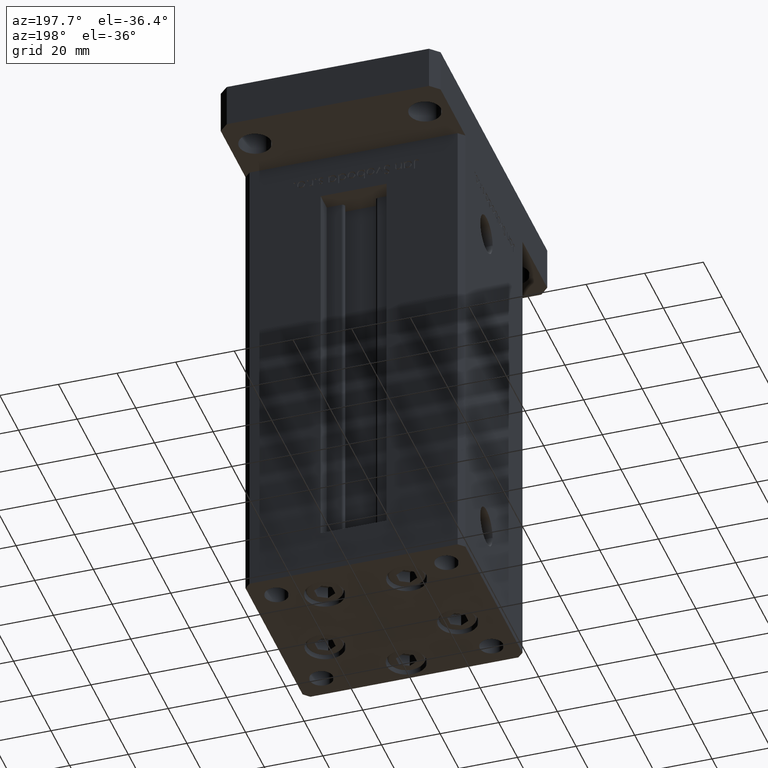
[diagram: clean part render]
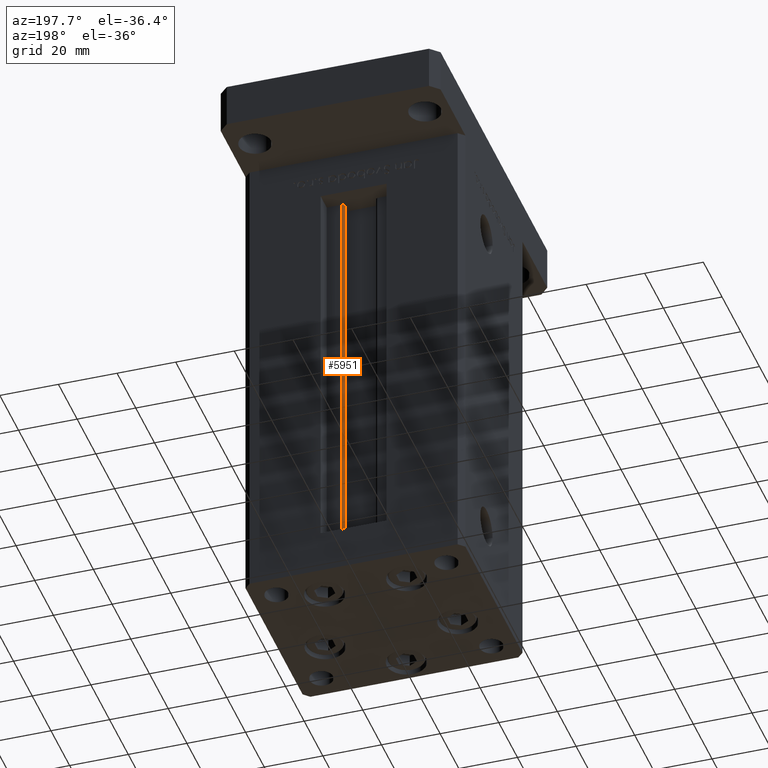
[diagram: same view with one face highlighted and labeled with its STEP entity id]
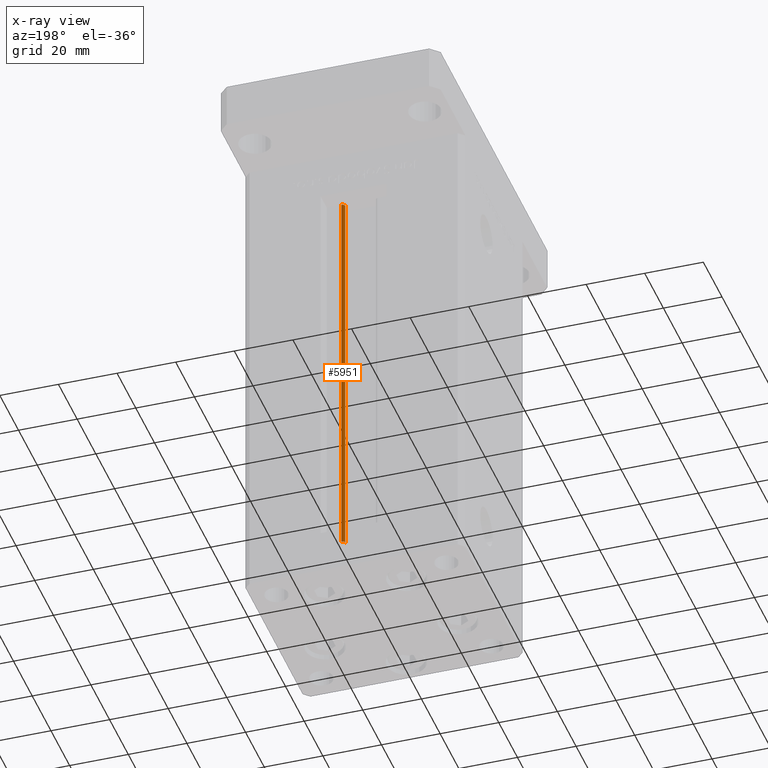
[diagram: x-ray of the same camera — body ghosted, the highlighted face saturated]
A machine part, auxiliary view. The second image highlights one B-rep face of the part: STEP entity #5951.
The next image is the same camera in x-ray: the body ghosted, the highlighted face saturated — about 0% of this face is hidden behind the body in this view.
In plain terms, the highlighted cylindrical surface (edge-blend (fillet) strip) has radius 0.9333 mm, axis along (0, 0, 1).
Its self-contained STEP definition (entity closure, byte-faithful):
#1977 = CARTESIAN_POINT ( 'NONE',  ( 6.183333333334001480, 25.06666666666599141, 0.000000000000000000 ) ) ;
#2240 = CYLINDRICAL_SURFACE ( 'NONE', #17196, 0.9333333333340008142 ) ;
#2278 = CARTESIAN_POINT ( 'NONE',  ( 5.375042956467948052, 24.59999999999899245, 136.0000000000000000 ) ) ;
#2524 = AXIS2_PLACEMENT_3D ( 'NONE', #9638, #13414, #42427 ) ;
#3739 = DIRECTION ( 'NONE',  ( 1.000000000000000000, 0.000000000000000000, 0.000000000000000000 ) ) ;
#5951 = ADVANCED_FACE ( 'NONE', ( #39107 ), #2240, .T. ) ;
#6570 = DIRECTION ( 'NONE',  ( 1.000000000000000000, 0.000000000000000000, 0.000000000000000000 ) ) ;
#7948 = EDGE_CURVE ( 'NONE', #32286, #38948, #45721, .T. ) ;
#9638 = CARTESIAN_POINT ( 'NONE',  ( 6.183333333334001480, 25.06666666666599141, 0.000000000000000000 ) ) ;
#10115 = CARTESIAN_POINT ( 'NONE',  ( 6.183333333334001480, 25.99999999999999289, 0.000000000000000000 ) ) ;
#10189 = LINE ( 'NONE', #35648, #31067 ) ;
#11088 = EDGE_CURVE ( 'NONE', #38948, #14856, #10189, .T. ) ;
#11213 = ORIENTED_EDGE ( 'NONE', *, *, #50411, .T. ) ;
#12940 = CARTESIAN_POINT ( 'NONE',  ( 6.183333333334001480, 25.06666666666599141, 136.0000000000000000 ) ) ;
#13414 = DIRECTION ( 'NONE',  ( -0.000000000000000000, -0.000000000000000000, -1.000000000000000000 ) ) ;
#14856 = VERTEX_POINT ( 'NONE', #39623 ) ;
#17196 = AXIS2_PLACEMENT_3D ( 'NONE', #1977, #18505, #6570 ) ;
#17968 = ORIENTED_EDGE ( 'NONE', *, *, #11088, .F. ) ;
#18505 = DIRECTION ( 'NONE',  ( -0.000000000000000000, -0.000000000000000000, 1.000000000000000000 ) ) ;
#19245 = VERTEX_POINT ( 'NONE', #2278 ) ;
#19266 = AXIS2_PLACEMENT_3D ( 'NONE', #12940, #32485, #3739 ) ;
#20956 = VECTOR ( 'NONE', #50054, 1000.000000000000000 ) ;
#23039 = EDGE_LOOP ( 'NONE', ( #17968, #40872, #11213, #43779 ) ) ;
#23815 = CARTESIAN_POINT ( 'NONE',  ( 5.375042956467947164, 24.59999999999899245, 0.000000000000000000 ) ) ;
#26208 = EDGE_CURVE ( 'NONE', #19245, #14856, #46993, .T. ) ;
#26721 = DIRECTION ( 'NONE',  ( -0.000000000000000000, -0.000000000000000000, 1.000000000000000000 ) ) ;
#31067 = VECTOR ( 'NONE', #26721, 1000.000000000000000 ) ;
#32286 = VERTEX_POINT ( 'NONE', #23815 ) ;
#32485 = DIRECTION ( 'NONE',  ( 0.000000000000000000, 0.000000000000000000, -1.000000000000000000 ) ) ;
#33008 = LINE ( 'NONE', #33275, #20956 ) ;
#33275 = CARTESIAN_POINT ( 'NONE',  ( 5.375042956467947164, 24.59999999999899245, 0.000000000000000000 ) ) ;
#35648 = CARTESIAN_POINT ( 'NONE',  ( 6.183333333334001480, 25.99999999999999289, 0.000000000000000000 ) ) ;
#38948 = VERTEX_POINT ( 'NONE', #10115 ) ;
#39107 = FACE_OUTER_BOUND ( 'NONE', #23039, .T. ) ;
#39623 = CARTESIAN_POINT ( 'NONE',  ( 6.183333333334001480, 25.99999999999999289, 136.0000000000000000 ) ) ;
#40872 = ORIENTED_EDGE ( 'NONE', *, *, #7948, .F. ) ;
#42427 = DIRECTION ( 'NONE',  ( 1.000000000000000000, 0.000000000000000000, 0.000000000000000000 ) ) ;
#43779 = ORIENTED_EDGE ( 'NONE', *, *, #26208, .T. ) ;
#45721 = CIRCLE ( 'NONE', #2524, 0.9333333333340008142 ) ;
#46993 = CIRCLE ( 'NONE', #19266, 0.9333333333340008142 ) ;
#50054 = DIRECTION ( 'NONE',  ( -0.000000000000000000, -0.000000000000000000, 1.000000000000000000 ) ) ;
#50411 = EDGE_CURVE ( 'NONE', #32286, #19245, #33008, .T. ) ;